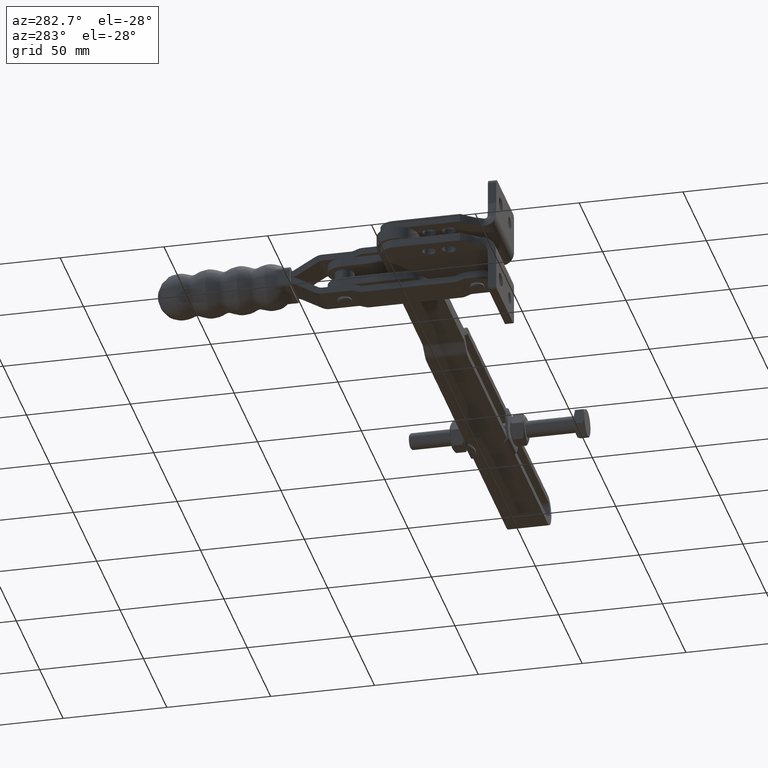
[diagram: clean part render]
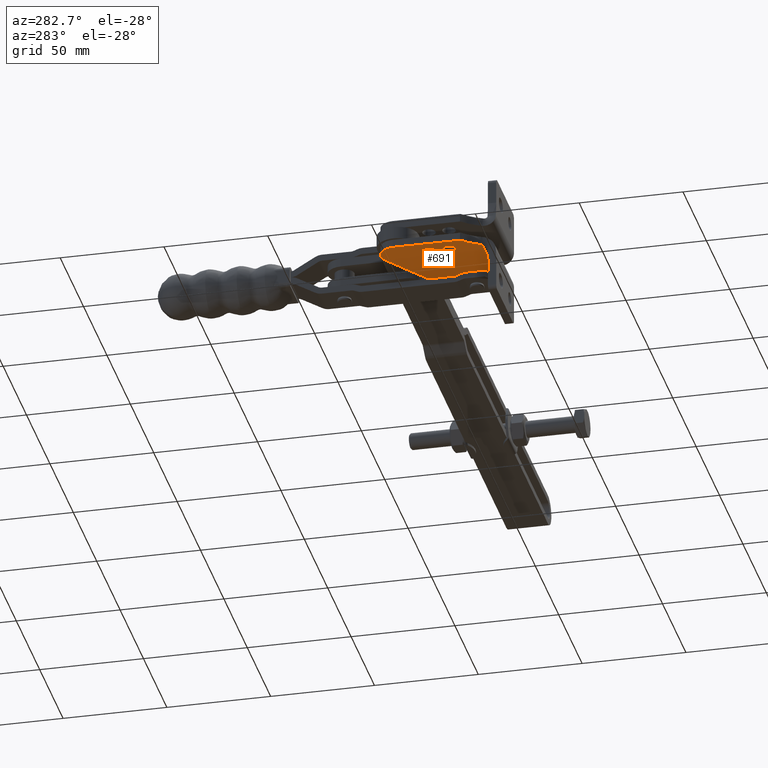
[diagram: same view with one face highlighted and labeled with its STEP entity id]
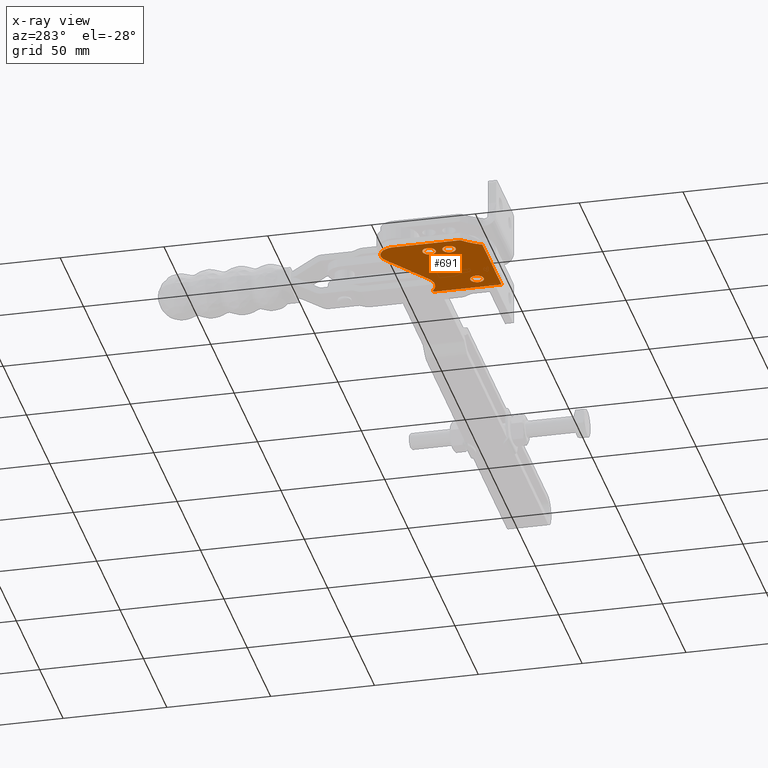
[diagram: x-ray of the same camera — body ghosted, the highlighted face saturated]
A machine part, auxiliary view. The second image highlights one B-rep face of the part: STEP entity #691.
The next image is the same camera in x-ray: the body ghosted, the highlighted face saturated — about 1% of this face is hidden behind the body in this view.
In plain terms, the highlighted planar face has unit normal (0, 0, 1).
Its self-contained STEP definition (entity closure, byte-faithful):
#151=CARTESIAN_POINT('',(10.344458075488902,24.786384974479617,-4.000000000000001));
#152=VERTEX_POINT('',#151);
#153=CARTESIAN_POINT('',(13.594458075488902,24.786384974479617,-4.000000000000001));
#154=DIRECTION('',(0.0,0.0,1.0));
#155=DIRECTION('',(1.0,0.0,0.0));
#156=AXIS2_PLACEMENT_3D('',#153,#154,#155);
#157=CIRCLE('',#156,3.250000000000001);
#158=EDGE_CURVE('',#152,#152,#157,.T.);
#492=CARTESIAN_POINT('',(-19.374765813601307,14.787482068854017,-4.000000000000001));
#493=VERTEX_POINT('',#492);
#566=CARTESIAN_POINT('',(21.614458075489395,14.787482068854008,-4.000000000000001));
#567=VERTEX_POINT('',#566);
#582=CARTESIAN_POINT('',(-19.374765813601307,14.787482068854013,-4.000000000000001));
#583=DIRECTION('',(1.0,0.0,0.0));
#584=VECTOR('',#583,40.989223889090702);
#585=LINE('',#582,#584);
#586=EDGE_CURVE('',#493,#567,#585,.T.);
#591=CARTESIAN_POINT('',(2.614458075488901,-10.885787924088294,-4.000000000000001));
#592=DIRECTION('',(0.0,0.0,1.0));
#593=DIRECTION('',(1.0,0.0,0.0));
#594=AXIS2_PLACEMENT_3D('',#591,#592,#593);
#595=PLANE('',#594);
#596=ORIENTED_EDGE('',*,*,#586,.F.);
#597=CARTESIAN_POINT('',(-25.705953316916172,23.585907677155895,-4.000000000000001));
#598=VERTEX_POINT('',#597);
#599=CARTESIAN_POINT('',(-46.985541924511118,1.59638497447961,-4.000000000000001));
#600=DIRECTION('',(0.0,0.0,1.0));
#601=DIRECTION('',(-1.0,0.0,0.0));
#602=AXIS2_PLACEMENT_3D('',#599,#600,#601);
#603=CIRCLE('',#602,30.600000000000009);
#604=EDGE_CURVE('',#493,#598,#603,.T.);
#605=ORIENTED_EDGE('',*,*,#604,.T.);
#606=CARTESIAN_POINT('',(-26.010541924511102,24.304519530184535,-4.000000000000001));
#607=VERTEX_POINT('',#606);
#608=CARTESIAN_POINT('',(-25.010541924511102,24.304519530184535,-4.000000000000001));
#609=DIRECTION('',(0.0,0.0,-1.0));
#610=DIRECTION('',(-1.0,0.0,0.0));
#611=AXIS2_PLACEMENT_3D('',#608,#609,#610);
#612=CIRCLE('',#611,1.0);
#613=EDGE_CURVE('',#598,#607,#612,.T.);
#614=ORIENTED_EDGE('',*,*,#613,.T.);
#615=CARTESIAN_POINT('',(-26.010541924511095,56.38638497447964,-4.000000000000001));
#616=VERTEX_POINT('',#615);
#617=CARTESIAN_POINT('',(-26.010541924511099,24.304519530184542,-4.000000000000001));
#618=DIRECTION('',(0.0,1.0,0.0));
#619=VECTOR('',#618,32.081865444295097);
#620=LINE('',#617,#619);
#621=EDGE_CURVE('',#607,#616,#620,.T.);
#622=ORIENTED_EDGE('',*,*,#621,.T.);
#623=CARTESIAN_POINT('',(-14.160678742174738,62.620899591405184,-4.000000000000001));
#624=VERTEX_POINT('',#623);
#625=CARTESIAN_POINT('',(-18.445541924511101,56.38638497447964,-4.000000000000001));
#626=DIRECTION('',(0.0,0.0,-1.0));
#627=DIRECTION('',(0.566406236924832,0.824126188622016,0.0));
#628=AXIS2_PLACEMENT_3D('',#625,#626,#627);
#629=CIRCLE('',#628,7.565000000000001);
#630=EDGE_CURVE('',#616,#624,#629,.T.);
#631=ORIENTED_EDGE('',*,*,#630,.T.);
#632=CARTESIAN_POINT('',(8.68638830811785,46.918545447844771,-4.000000000000001));
#633=VERTEX_POINT('',#632);
#634=CARTESIAN_POINT('',(-14.160678742174735,62.620899591405184,-4.000000000000001));
#635=DIRECTION('',(0.824126188622016,-0.566406236924833,0.0));
#636=VECTOR('',#635,27.722777610664377);
#637=LINE('',#634,#636);
#638=EDGE_CURVE('',#624,#633,#637,.T.);
#639=ORIENTED_EDGE('',*,*,#638,.T.);
#640=CARTESIAN_POINT('',(19.978217019642994,47.412751171772733,-4.000000000000001));
#641=VERTEX_POINT('',#640);
#642=CARTESIAN_POINT('',(14.004458075488905,54.656384974479629,-4.000000000000001));
#643=DIRECTION('',(0.0,0.0,1.0));
#644=DIRECTION('',(0.566406236924833,0.824126188622016,0.0));
#645=AXIS2_PLACEMENT_3D('',#642,#643,#644);
#646=CIRCLE('',#645,9.38914408189474);
#647=EDGE_CURVE('',#633,#641,#646,.T.);
#648=ORIENTED_EDGE('',*,*,#647,.T.);
#649=CARTESIAN_POINT('',(21.614458075488905,46.641260848530706,-4.000000000000001));
#650=VERTEX_POINT('',#649);
#651=CARTESIAN_POINT('',(20.614458075488908,46.641260848530706,-4.000000000000001));
#652=DIRECTION('',(0.0,0.0,-1.0));
#653=DIRECTION('',(1.0,0.0,0.0));
#654=AXIS2_PLACEMENT_3D('',#651,#652,#653);
#655=CIRCLE('',#654,1.0);
#656=EDGE_CURVE('',#641,#650,#655,.T.);
#657=ORIENTED_EDGE('',*,*,#656,.T.);
#658=CARTESIAN_POINT('',(21.614458075490035,46.641260848530706,-4.000000000000001));
#659=DIRECTION('',(0.0,-1.0,0.0));
#660=VECTOR('',#659,31.853778779676695);
#661=LINE('',#658,#660);
#662=EDGE_CURVE('',#650,#567,#661,.T.);
#663=ORIENTED_EDGE('',*,*,#662,.T.);
#664=EDGE_LOOP('',(#596,#605,#614,#622,#631,#639,#648,#657,#663));
#665=FACE_OUTER_BOUND('',#664,.T.);
#666=ORIENTED_EDGE('',*,*,#158,.T.);
#667=EDGE_LOOP('',(#666));
#668=FACE_BOUND('',#667,.T.);
#669=CARTESIAN_POINT('',(-15.200541924511096,31.046384974479619,-4.000000000000001));
#670=VERTEX_POINT('',#669);
#671=CARTESIAN_POINT('',(-18.385541924511099,31.046384974479619,-4.000000000000001));
#672=DIRECTION('',(0.0,0.0,-1.0));
#673=DIRECTION('',(-1.0,0.0,0.0));
#674=AXIS2_PLACEMENT_3D('',#671,#672,#673);
#675=CIRCLE('',#674,3.185000000000001);
#676=EDGE_CURVE('',#670,#670,#675,.T.);
#677=ORIENTED_EDGE('',*,*,#676,.F.);
#678=EDGE_LOOP('',(#677));
#679=FACE_BOUND('',#678,.T.);
#680=CARTESIAN_POINT('',(-15.200541924511095,40.66638497447962,-4.000000000000001));
#681=VERTEX_POINT('',#680);
#682=CARTESIAN_POINT('',(-18.385541924511095,40.66638497447962,-4.000000000000001));
#683=DIRECTION('',(0.0,0.0,-1.0));
#684=DIRECTION('',(-1.0,0.0,0.0));
#685=AXIS2_PLACEMENT_3D('',#682,#683,#684);
#686=CIRCLE('',#685,3.185000000000001);
#687=EDGE_CURVE('',#681,#681,#686,.T.);
#688=ORIENTED_EDGE('',*,*,#687,.F.);
#689=EDGE_LOOP('',(#688));
#690=FACE_BOUND('',#689,.T.);
#691=ADVANCED_FACE('',(#665,#668,#679,#690),#595,.F.);